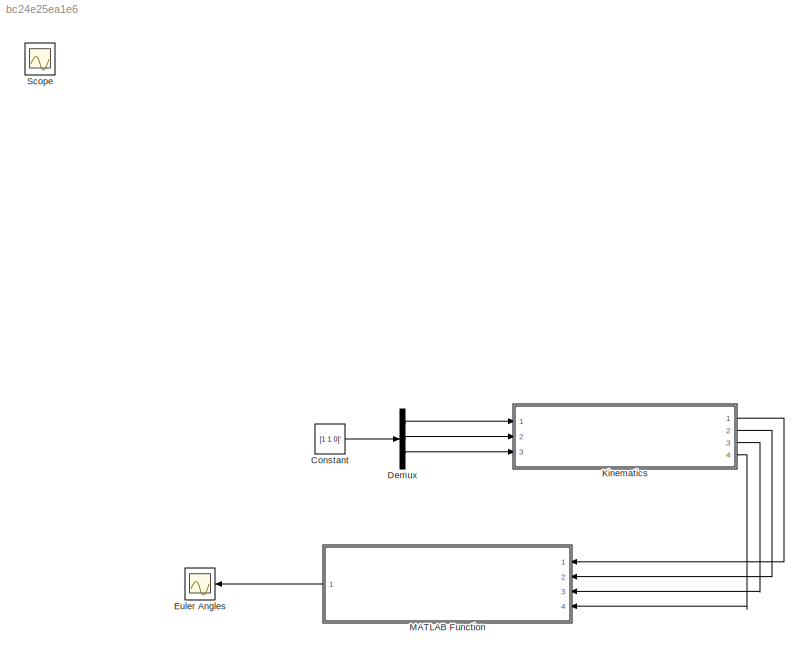
MODEL slx_bc24e25ea1e6
KIND model
CONFIG AbsTol = auto
CONFIG EnableMultiTasking = off
CONFIG FixedStep = auto
CONFIG MaxStep = 1e-4
CONFIG MinStep = 1e-6
CONFIG RelTol = 1e-3
CONFIG SampleTimeConstraint = Unconstrained
CONFIG Solver = ode45
CONFIG SolverName = ode45
CONFIG StartTime = 0.0
CONFIG StopTime = 50
BLOCK [Constant] Constant
  Value = [1 1 0]'
BLOCK [Demux] Demux
  Outputs = 3
  Ports = [1, 3]
BLOCK [Scope] Euler Angles
  Floating = off
  NumInputPorts = 1
  Ports = [1]
  ScopeSpecificationString = Simulink.scopes.TimeScopeBlockCfg('CurrentConfiguration', extmgr.ConfigurationSet(extmgr.Configuration('Core','General UI',true),extmgr.Configuration('Core','Source UI',true),extmgr.Configuration('Sources','WiredSimulink',true),extmgr.Configuration('Visuals','Time Domain',true,'SerializedDisplays',{struct('MinYLimReal','-224.99989','MaxYLimReal','224.99906','YLabelReal','','MinYLimMag',' 0.00000',...<+1775ch>
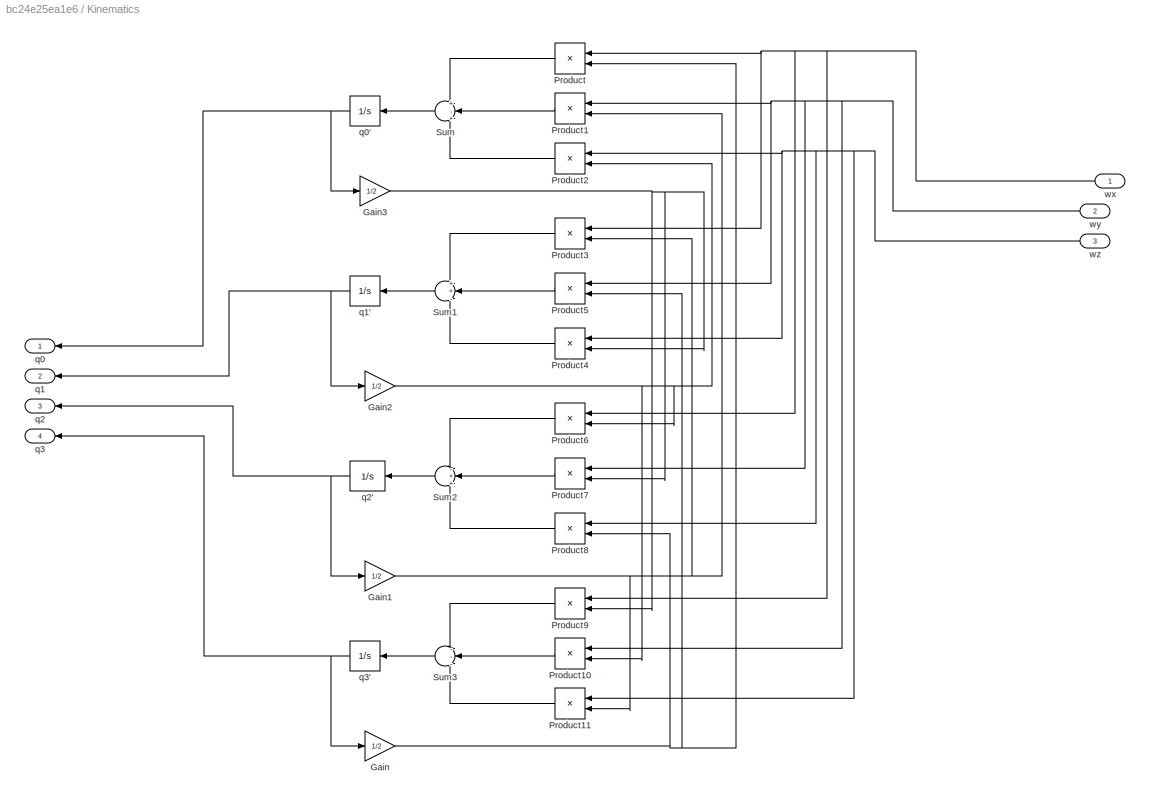
BLOCK [SubSystem] Kinematics
  Ports = [3, 4]
  RequestExecContextInheritance = off
BLOCK [Gain] Kinematics/Gain
  Gain = 1/2
BLOCK [Gain] Kinematics/Gain1
  Gain = 1/2
BLOCK [Gain] Kinematics/Gain2
  Gain = 1/2
BLOCK [Gain] Kinematics/Gain3
  Gain = 1/2
BLOCK [Product] Kinematics/Product
  Ports = [2, 1]
BLOCK [Product] Kinematics/Product1
  Ports = [2, 1]
BLOCK [Product] Kinematics/Product10
  Ports = [2, 1]
BLOCK [Product] Kinematics/Product11
  Ports = [2, 1]
BLOCK [Product] Kinematics/Product2
  Ports = [2, 1]
BLOCK [Product] Kinematics/Product3
  Ports = [2, 1]
BLOCK [Product] Kinematics/Product4
  Ports = [2, 1]
BLOCK [Product] Kinematics/Product5
  Ports = [2, 1]
BLOCK [Product] Kinematics/Product6
  Ports = [2, 1]
BLOCK [Product] Kinematics/Product7
  Ports = [2, 1]
BLOCK [Product] Kinematics/Product8
  Ports = [2, 1]
BLOCK [Product] Kinematics/Product9
  Ports = [2, 1]
BLOCK [Sum] Kinematics/Sum
  Inputs = +-+
  Ports = [3, 1]
BLOCK [Sum] Kinematics/Sum1
  Inputs = ++-
  Ports = [3, 1]
BLOCK [Sum] Kinematics/Sum2
  Inputs = -++
  Ports = [3, 1]
BLOCK [Sum] Kinematics/Sum3
  Inputs = ---
  Ports = [3, 1]
BLOCK [Outport] Kinematics/q0
BLOCK [Integrator] Kinematics/q0'
  InitialCondition = -1
  Ports = [1, 1]
BLOCK [Outport] Kinematics/q1
  Port = 2
BLOCK [Integrator] Kinematics/q1'
  Ports = [1, 1]
BLOCK [Outport] Kinematics/q2
  Port = 3
BLOCK [Integrator] Kinematics/q2'
  Ports = [1, 1]
BLOCK [Outport] Kinematics/q3
  Port = 4
BLOCK [Integrator] Kinematics/q3'
  Ports = [1, 1]
BLOCK [Inport] Kinematics/wx
BLOCK [Inport] Kinematics/wy
  Port = 2
BLOCK [Inport] Kinematics/wz
  Port = 3
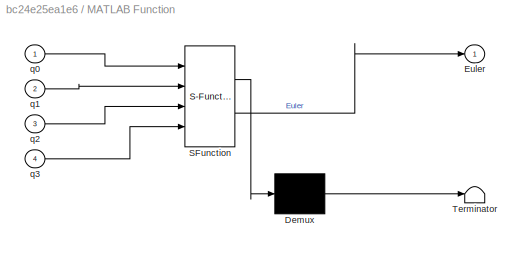
BLOCK [SubSystem] MATLAB Function
  ErrorFcn = Stateflow.Translate.translate
  PermitHierarchicalResolution = ExplicitOnly
  Ports = [4, 1]
  RequestExecContextInheritance = off
  SFBlockType = MATLAB Function
  TreatAsAtomicUnit = on
BLOCK [Demux] MATLAB Function/ Demux 
  Outputs = 1
  Ports = [1, 1]
BLOCK [S-Function] MATLAB Function/ SFunction 
  EnableBusSupport = on
  FunctionName = sf_sfun
  PortCounts = [4 2]
  Ports = [4, 2]
  SFcnIsStateOwnerBlock = off
  SFunctionDeploymentMode = off
  Tag = Stateflow S-Function 2
BLOCK [Terminator] MATLAB Function/ Terminator 
BLOCK [Outport] MATLAB Function/Euler
BLOCK [Inport] MATLAB Function/q0
BLOCK [Inport] MATLAB Function/q1
  Port = 2
BLOCK [Inport] MATLAB Function/q2
  Port = 3
BLOCK [Inport] MATLAB Function/q3
  Port = 4
BLOCK [Scope] Scope
  Floating = off
  IOType = viewer
  NumInputPorts = 1
  Ports = []
  ScopeSpecificationString = Simulink.scopes.TimeScopeBlockCfg('CurrentConfiguration', extmgr.ConfigurationSet(extmgr.Configuration('Core','General UI',true),extmgr.Configuration('Core','Source UI',true),extmgr.Configuration('Sources','WiredSimulink',true,'DataLoggingVariableName','ScopeData1'),extmgr.Configuration('Visuals','Time Domain',true,'SerializedDisplays',{struct('MinYLimReal','-10.00000','MaxYLimReal','10.00000','YL...<+1394ch>
LINE Constant:1 -> Demux:1
LINE Demux:1 -> Kinematics:1
LINE Demux:2 -> Kinematics:2
LINE Demux:3 -> Kinematics:3
NET Kinematics/Gain1:1 -> Kinematics/Product11:2, Kinematics/Product1:2, Kinematics/Product3:2
NET Kinematics/Gain2:1 -> Kinematics/Product10:2, Kinematics/Product2:2, Kinematics/Product6:2
NET Kinematics/Gain3:1 -> Kinematics/Product4:2, Kinematics/Product7:2, Kinematics/Product9:2
NET Kinematics/Gain:1 -> Kinematics/Product5:2, Kinematics/Product8:2, Kinematics/Product:2
LINE Kinematics/Product10:1 -> Kinematics/Sum3:2
LINE Kinematics/Product11:1 -> Kinematics/Sum3:3
LINE Kinematics/Product1:1 -> Kinematics/Sum:2
LINE Kinematics/Product2:1 -> Kinematics/Sum:3
LINE Kinematics/Product3:1 -> Kinematics/Sum1:1
LINE Kinematics/Product4:1 -> Kinematics/Sum1:3
LINE Kinematics/Product5:1 -> Kinematics/Sum1:2
LINE Kinematics/Product6:1 -> Kinematics/Sum2:1
LINE Kinematics/Product7:1 -> Kinematics/Sum2:2
LINE Kinematics/Product8:1 -> Kinematics/Sum2:3
LINE Kinematics/Product9:1 -> Kinematics/Sum3:1
LINE Kinematics/Product:1 -> Kinematics/Sum:1
LINE Kinematics/Sum1:1 -> Kinematics/q1':1
LINE Kinematics/Sum2:1 -> Kinematics/q2':1
LINE Kinematics/Sum3:1 -> Kinematics/q3':1
LINE Kinematics/Sum:1 -> Kinematics/q0':1
NET Kinematics/q0':1 -> Kinematics/Gain3:1, Kinematics/q0:1
NET Kinematics/q1':1 -> Kinematics/Gain2:1, Kinematics/q1:1
NET Kinematics/q2':1 -> Kinematics/Gain1:1, Kinematics/q2:1
NET Kinematics/q3':1 -> Kinematics/Gain:1, Kinematics/q3:1
NET Kinematics/wx:1 -> Kinematics/Product3:1, Kinematics/Product6:1, Kinematics/Product9:1, Kinematics/Product:1
NET Kinematics/wy:1 -> Kinematics/Product10:1, Kinematics/Product1:1, Kinematics/Product5:1, Kinematics/Product7:1
NET Kinematics/wz:1 -> Kinematics/Product11:1, Kinematics/Product2:1, Kinematics/Product4:1, Kinematics/Product8:1
LINE Kinematics:1 -> MATLAB Function:1
LINE Kinematics:2 -> MATLAB Function:2
LINE Kinematics:3 -> MATLAB Function:3
LINE Kinematics:4 -> MATLAB Function:4
LINE MATLAB Function:1 -> Euler Angles:1
note: NET lines group one-source signal fan-out (src -> all destinations, sorted); 1:1 wires keep LINE
CHART MATLAB Function states=1 transitions=1
  STATE_LABEL 'eML_blk_kernel()'
  STATE_LABEL 'SCRIPT:\n\nfunction Euler = ZYX(q0, q1, q2, q3)\n\n\nC11 = (q0^2)+(q1^2)-(q2^2)-(q3^2);\nC12 = (2*(q1*q2+q0*q3));\nC13 = (2*(q1*q3-q0*q2));\n%C21 = 2*(q1*q2-q0*q3)\n%C22 = (q0^2)-(q1^2)+(q2^2)-(q3^2)\nC23 = (2*(q2*q3+q0*q1));\n%C31 = 2*(q1*q3+q0*q2)\n%C32 = 2*(q2*q3-q0*q1)\nC33 = ((q0^2)-(q1^2)-(q2^2)+(q3^2));\n\n%C = [C11 C12 C13; C21 C22 C23; C31 C32 C33]\n\n%DCM = [ctheta*calpha ctheta*salpha -stheta; sphi*sthe...<+2519ch>'
CHART  states=0 transitions=0
